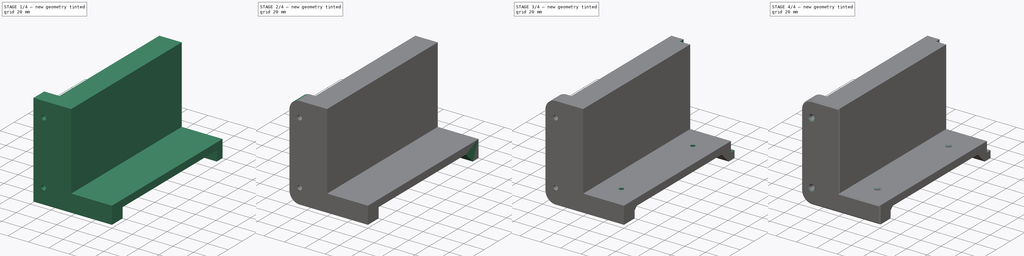
[diagram: build sequence overview — one tinted view per stage of 4, left to right]
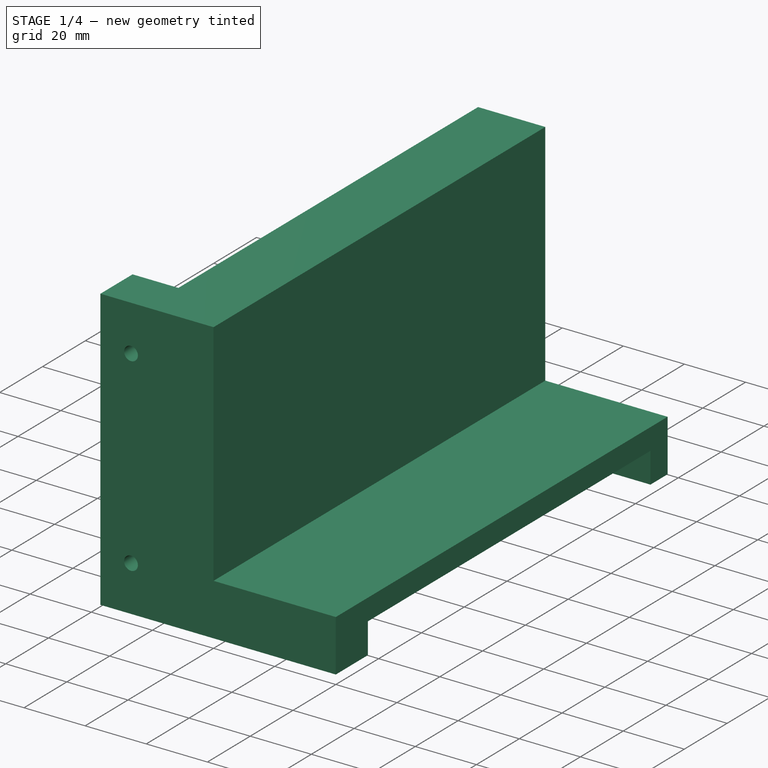
[diagram: stage 1 of 4 — iso view after this stage's code; geometry added in this stage tinted green]
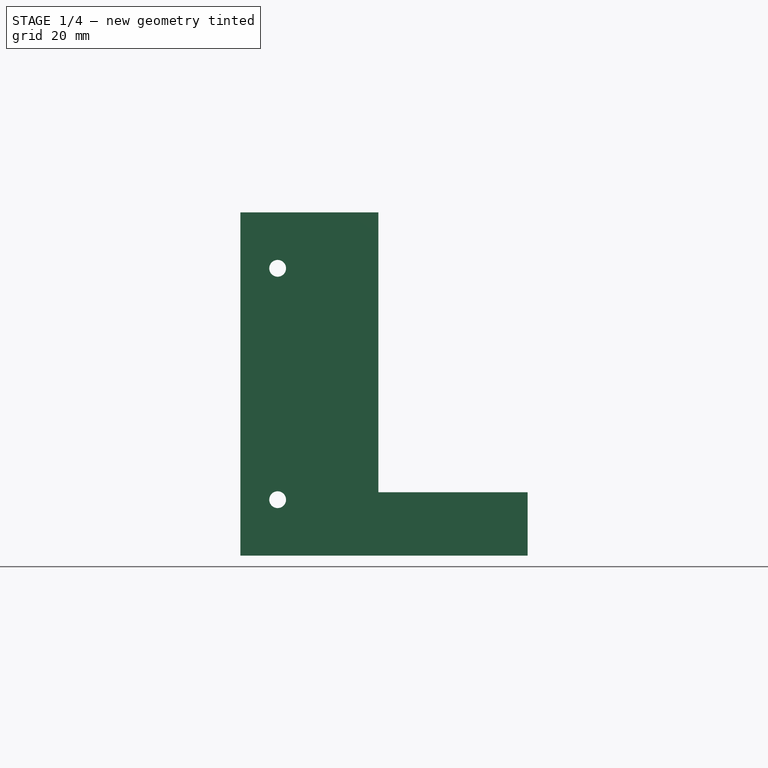
[diagram: stage 1 of 4 — front view after this stage's code; geometry added in this stage tinted green]
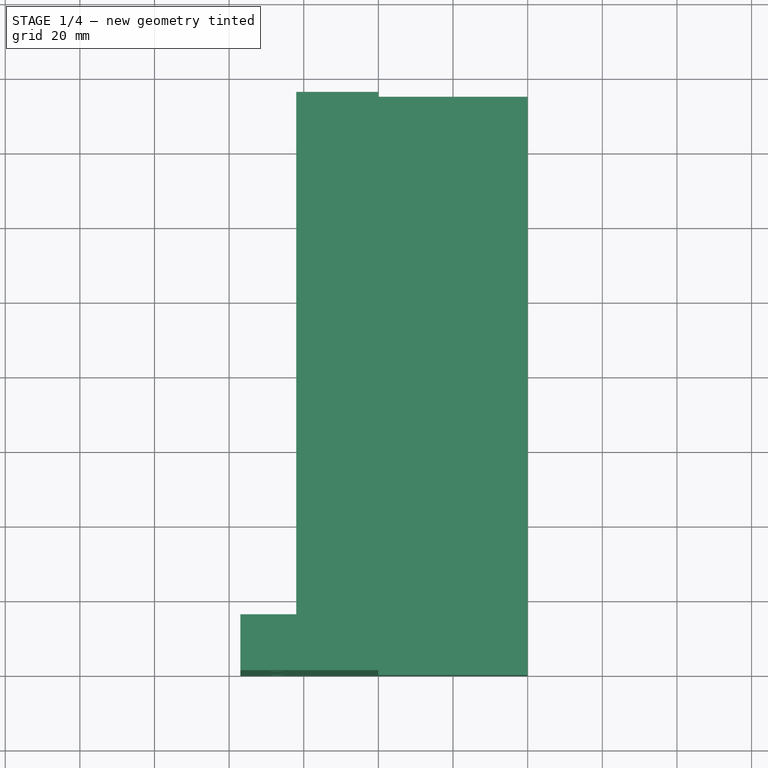
[diagram: stage 1 of 4 — top view after this stage's code; geometry added in this stage tinted green]
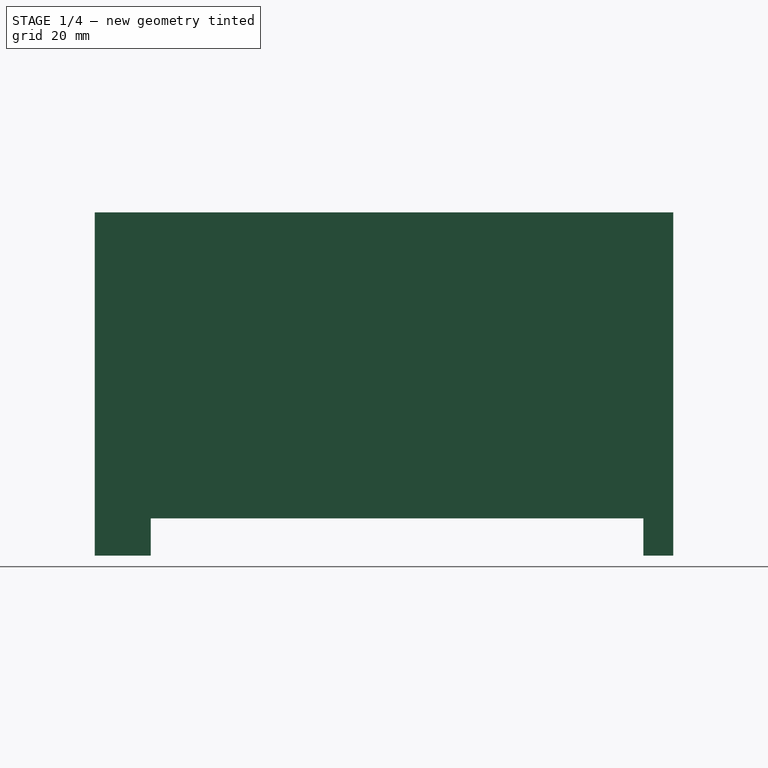
[diagram: stage 1 of 4 — right view after this stage's code; geometry added in this stage tinted green]
FCSTD DOCUMENT  (FreeCAD 2024.113R14555 (Git shallow))
Label: CoteJardiniere
License: All rights reserved
LicenseURL: https://en.wikipedia.org/wiki/All_rights_reserved
objects: Sketcher::SketchObject×5, PartDesign::Chamfer×5, PartDesign::Pocket×3, PartDesign::Pad×2, PartDesign::Fillet×2, PartDesign::Body×1
note: 47 computed .brp shape members not serialized (recipe doc carries the construction recipe); baked Part::Feature solids carry a one-line shape summary decoded from their .brp

FEATURE [Sketcher::SketchObject] Sketch
  ArcFitTolerance = 1e-06
  AttachmentSupport = -> [XZ_Plane]
  ExternalBSplineMaxDegree = 5
  ExternalBSplineTolerance = 0.0001
  FixShape = 1
  FullyConstrained = true
  InternalTolerance = 1e-06
  InvalidShape = false
  MakeInternals = false
  MapMode = 5
  Placement = pos=(0,0,0) rot=(1,0,0;1.5708rad)
  Support = -> [XZ_Plane]
  TreeRank = 11
  ValidateShape = false
  sketch-geometry (6):
    g0: LineSegment StartX=40 StartY=0 StartZ=0 EndX=40 EndY=17 EndZ=0
    g1: LineSegment StartX=40 StartY=17 StartZ=0 EndX=0 EndY=17 EndZ=0
    g2: LineSegment StartX=0 StartY=17 StartZ=0 EndX=0 EndY=92 EndZ=0
    g3: LineSegment StartX=0 StartY=92 StartZ=0 EndX=-22 EndY=92 EndZ=0
    g4: LineSegment StartX=-22 StartY=92 StartZ=0 EndX=-22 EndY=0 EndZ=0
    g5: LineSegment StartX=40 StartY=0 StartZ=0 EndX=-22 EndY=0 EndZ=0
  constraints (18):
    c: PointOnObject(g0,g-1)
    c: Coincident(g0,g1)
    c: Horizontal(g1)
    c: Coincident(g1,g2)
    c: Vertical(g2)
    c: Coincident(g2,g3)
    c: Horizontal(g3)
    c: Coincident(g3,g4)
    c: PointOnObject(g4,g-1)
    c: Vertical(g4)
    c: Coincident(g0,g5)
    c: Coincident(g5,g4)
    c: Vertical(g0)
    c: DistanceY(g0,g0) = 17
    c: DistanceX(g0) = 40
    c: DistanceX(g3,g-1) = 22
    c: PointOnObject(g1,g-2)
    c: DistanceY(g-1,g2) = 92
FEATURE [PartDesign::Pad] Pad
  AddSubType = 0
  AlongSketchNormal = false
  AutoTaperInnerAngle = true
  CheckUpToFaceLimits = true
  ClaimChildren = false
  Direction = (0,-1,2e-16)
  Fit = 0
  FitJoin = 0
  FixShape = 1
  InnerFit = 0
  InnerFitJoin = 0
  InvalidShape = false
  Length = 155
  Length2 = 10
  Linearize = true
  NewSolid = false
  Profile = -> Sketch
  ReferenceAxis = -> Sketch [N_Axis]
  Refine = true
  Reversed = true
  Suppress = false
  TaperInnerAngle = 0
  TaperInnerAngleRev = 0
  TreeRank = 12
  Type = 0
  ValidateShape = true
  _ProfileBasedVersion = 1
FEATURE [Sketcher::SketchObject] Sketch001
  ArcFitTolerance = 1e-06
  AttachmentSupport = -> [XZ_Plane]
  ExternalBSplineMaxDegree = 5
  ExternalBSplineTolerance = 0.0001
  ExternalGeometry = -> [Pad]
  FixShape = 1
  FullyConstrained = true
  InternalTolerance = 1e-06
  InvalidShape = false
  MakeInternals = false
  MapMode = 5
  Placement = pos=(0,0,0) rot=(1,0,0;1.5708rad)
  Support = -> [XZ_Plane]
  TreeRank = 13
  ValidateShape = false
  sketch-geometry (8):
    g0: LineSegment StartX=-22 StartY=92 StartZ=0 EndX=-37 EndY=92 EndZ=0
    g1: LineSegment StartX=-37 StartY=92 StartZ=0 EndX=-37 EndY=0 EndZ=0
    g2: LineSegment StartX=-37 StartY=0 StartZ=0 EndX=-22 EndY=0 EndZ=0
    g3: LineSegment StartX=-22 StartY=0 StartZ=0 EndX=-22 EndY=92 EndZ=0
    g4: Circle CenterX=-27 CenterY=77 CenterZ=0 NormalX=0 NormalY=0 NormalZ=1 AngleXU=0 Radius=2.25
    g5: Circle CenterX=-27 CenterY=15 CenterZ=0 NormalX=0 NormalY=0 NormalZ=1 AngleXU=0 Radius=2.25
    g6: LineSegment [constr] StartX=-27 StartY=92 StartZ=0 EndX=-27 EndY=0 EndZ=0
    g7: GeomPoint [constr] X=-27 Y=46 Z=0
  constraints (20):
    c: Coincident(g0,g1)
    c: Coincident(g1,g2)
    c: Coincident(g2,g3)
    c: Coincident(g3,g0)
    c: Horizontal(g0)
    c: Horizontal(g2)
    c: Vertical(g1)
    c: Coincident(g0,g-3)
    c: Coincident(g2,g-3)
    c: DistanceX(g0,g0) = 15
    c: Equal(g5,g4)
    c: Diameter(g5) = 4.5
    c: PointOnObject(g6,g2)
    c: Vertical(g6)
    c: Symmetric(g6,g6,g7)
    c: PointOnObject(g4,g6)
    c: Symmetric(g5,g4,g7)
    c: DistanceY(g4,g6) = 15
    c: PointOnObject(g6,g0)
    c: DistanceX(g0,g6) = 10
FEATURE [PartDesign::Pad] Pad001
  AddSubType = 0
  AlongSketchNormal = false
  AutoTaperInnerAngle = true
  BaseFeature = -> Pad
  CheckUpToFaceLimits = true
  ClaimChildren = false
  Direction = (0,-1,2e-16)
  Fit = 0
  FitJoin = 0
  FixShape = 1
  InnerFit = 0
  InnerFitJoin = 0
  InvalidShape = false
  Length = 15
  Length2 = 10
  Linearize = true
  NewSolid = false
  Profile = -> Sketch001
  ReferenceAxis = -> Sketch001 [N_Axis]
  Refine = true
  Reversed = true
  Suppress = false
  TaperInnerAngle = 0
  TaperInnerAngleRev = 0
  TreeRank = 14
  Type = 0
  ValidateShape = true
  _ProfileBasedVersion = 1
FEATURE [Sketcher::SketchObject] Sketch002
  ArcFitTolerance = 1e-06
  AttachmentOffset = pos=(0,0,-8) rot=(0,0,1;0rad)
  AttachmentSupport = -> [Pad001]
  ExternalBSplineMaxDegree = 5
  ExternalBSplineTolerance = 0.0001
  ExternalGeometry = -> [Pad001]
  FixShape = 1
  FullyConstrained = true
  InternalTolerance = 1e-06
  InvalidShape = false
  MakeInternals = false
  MapMode = 5
  Placement = pos=(0,147,-3.26e-14) rot=(0,0.707107,0.707107;3.14159rad)
  Support = -> [Pad001]
  TreeRank = 15
  ValidateShape = false
  sketch-geometry (5):
    g0: LineSegment StartX=-40 StartY=0 StartZ=0 EndX=-40 EndY=10 EndZ=0
    g1: LineSegment StartX=-40 StartY=10 StartZ=0 EndX=12 EndY=10 EndZ=0
    g2: LineSegment StartX=12 StartY=10 StartZ=0 EndX=12 EndY=84 EndZ=0
    g3: LineSegment StartX=22 StartY=0 StartZ=0 EndX=22 EndY=84 EndZ=0
    g4: LineSegment StartX=12 StartY=84 StartZ=0 EndX=22 EndY=84 EndZ=0
  constraints (14):
    c: Coincident(g-4,g0)
    c: Vertical(g0)
    c: Coincident(g0,g1)
    c: Horizontal(g1)
    c: Coincident(g1,g2)
    c: Vertical(g2)
    c: Coincident(g3,g-4)
    c: Vertical(g3)
    c: Coincident(g4,g2)
    c: Coincident(g4,g3)
    c: Horizontal(g4)
    c: DistanceY(g3,g-3) = 8
    c: DistanceY(g0,g0) = 10
    c: Equal(g4,g0)
FEATURE [PartDesign::Pocket] Pocket
  AddSubType = 1
  AlongSketchNormal = false
  AutoTaperInnerAngle = true
  BaseFeature = -> Pad001
  CheckUpToFaceLimits = true
  ClaimChildren = false
  Direction = (0,-1,2e-16)
  Fit = 0
  FitJoin = 0
  FixShape = 1
  InnerFit = 0
  InnerFitJoin = 0
  InvalidShape = false
  Length = 0
  Length2 = 10
  Linearize = true
  NewSolid = false
  Profile = -> Sketch002
  ReferenceAxis = -> Sketch002 [N_Axis]
  Refine = true
  Suppress = false
  TaperInnerAngle = 0
  TaperInnerAngleRev = 0
  TreeRank = 16
  Type = 3
  UpToFace = -> Pad001 [Face2]
  ValidateShape = true
  _ProfileBasedVersion = 1
  _Version = 1
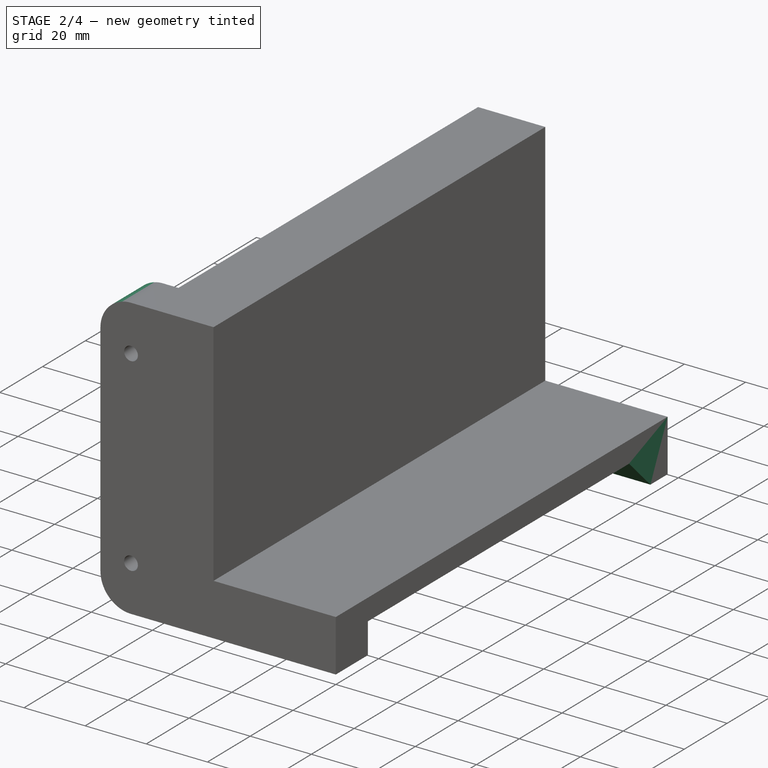
[diagram: stage 2 of 4 — iso view after this stage's code; geometry added in this stage tinted green]
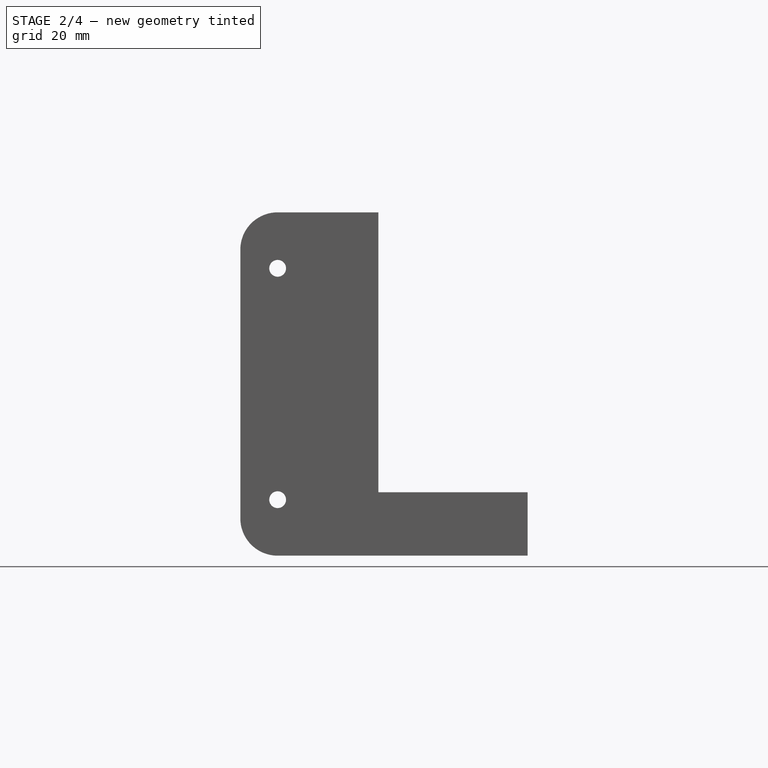
[diagram: stage 2 of 4 — front view after this stage's code; geometry added in this stage tinted green]
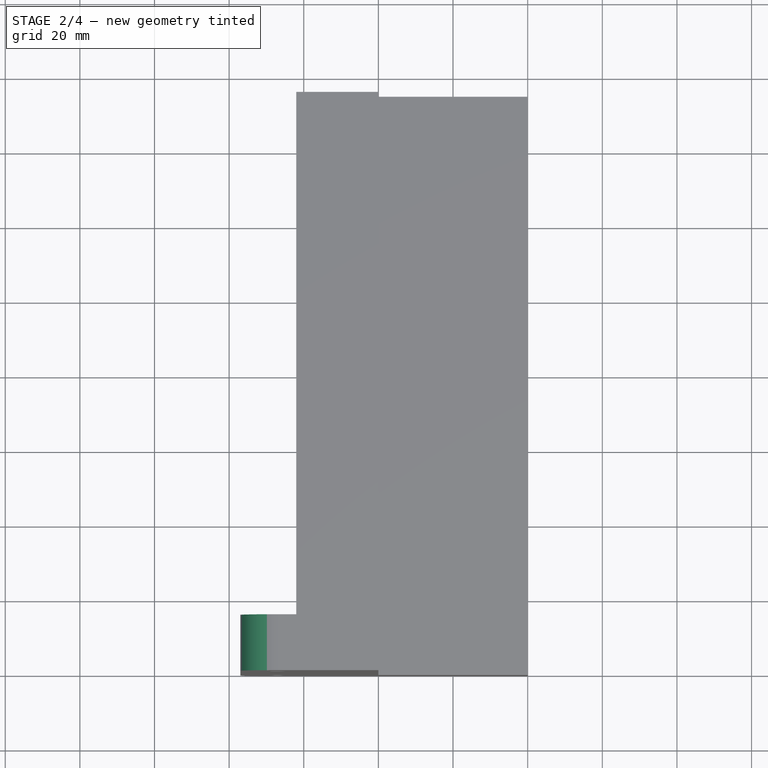
[diagram: stage 2 of 4 — top view after this stage's code; geometry added in this stage tinted green]
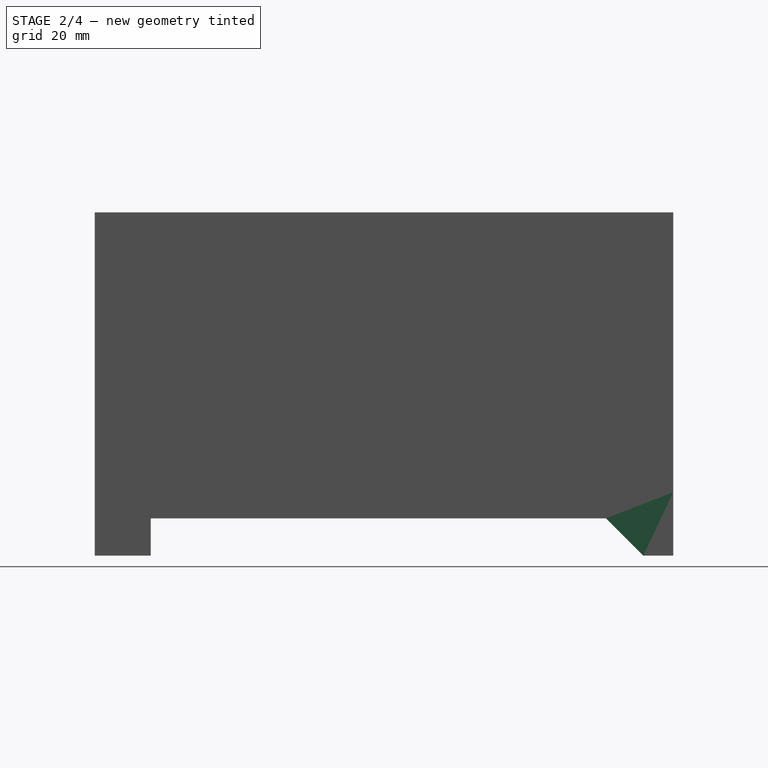
[diagram: stage 2 of 4 — right view after this stage's code; geometry added in this stage tinted green]
FEATURE [PartDesign::Fillet] Fillet
  AddSubType = 0
  Base = -> Pocket [Edge2,Edge1,Edge43]
  BaseFeature = -> Pocket
  FixShape = 1
  InvalidShape = false
  NewSolid = false
  Radius = 10
  Refine = true
  SupportTransform = false
  Suppress = false
  TreeRank = 17
  UseAllEdges = false
  ValidateShape = true
FEATURE [PartDesign::Chamfer] Chamfer
  AddSubType = 0
  Angle = 45
  Base = -> Fillet [Edge47,Edge48]
  BaseFeature = -> Fillet
  ChamferType = 0
  FixShape = 1
  FlipDirection = false
  InvalidShape = false
  NewSolid = false
  Refine = true
  Size = 9.99999
  Size2 = 1
  SupportTransform = false
  Suppress = false
  TreeRank = 18
  UseAllEdges = false
  ValidateShape = true
FEATURE [PartDesign::Fillet] Fillet001
  AddSubType = 0
  Base = -> Chamfer [Edge21]
  BaseFeature = -> Chamfer
  FixShape = 1
  InvalidShape = false
  NewSolid = false
  Radius = 19.9
  Refine = true
  SupportTransform = false
  Suppress = false
  TreeRank = 19
  UseAllEdges = false
  ValidateShape = true
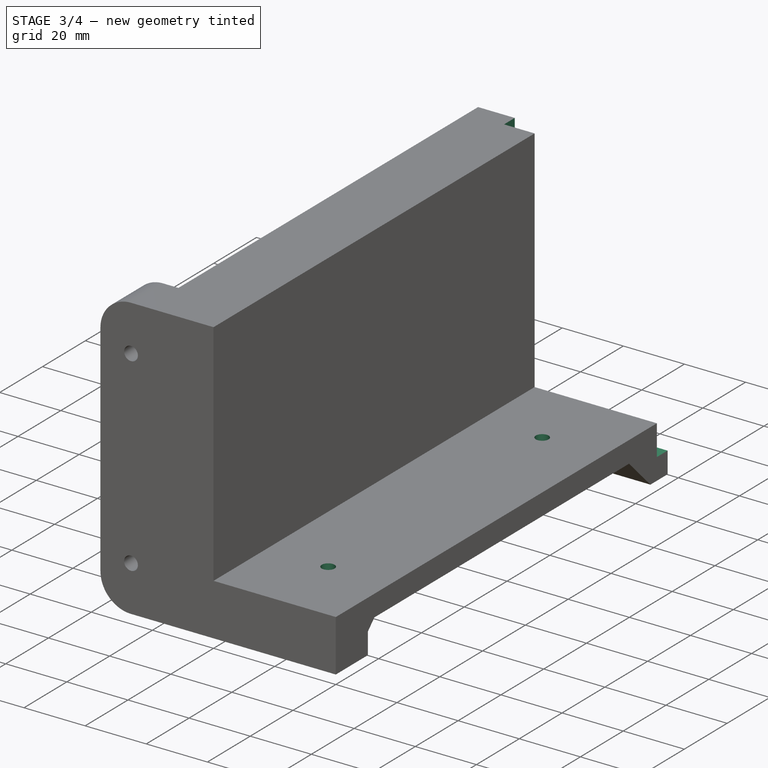
[diagram: stage 3 of 4 — iso view after this stage's code; geometry added in this stage tinted green]
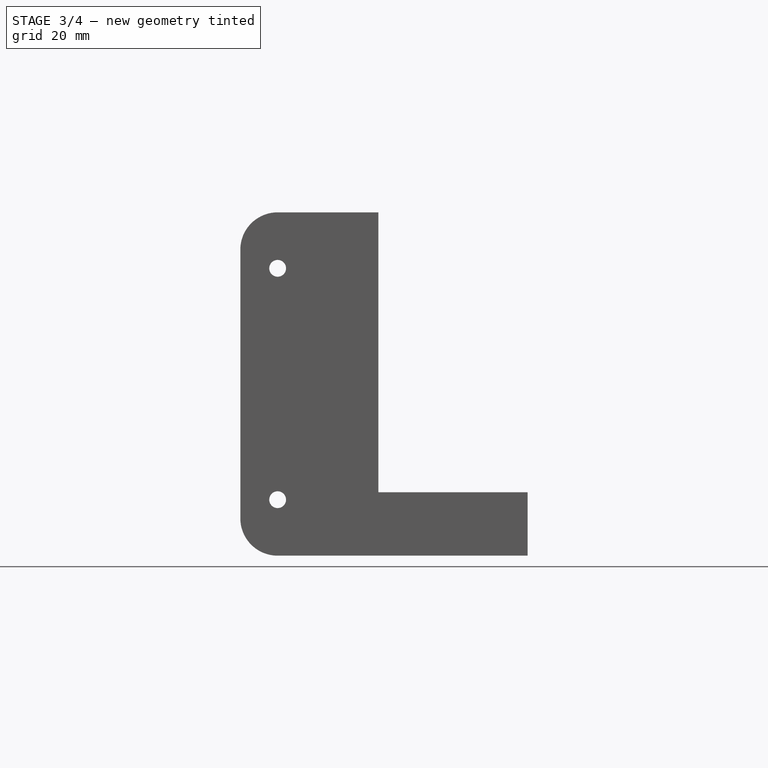
[diagram: stage 3 of 4 — front view after this stage's code; geometry added in this stage tinted green]
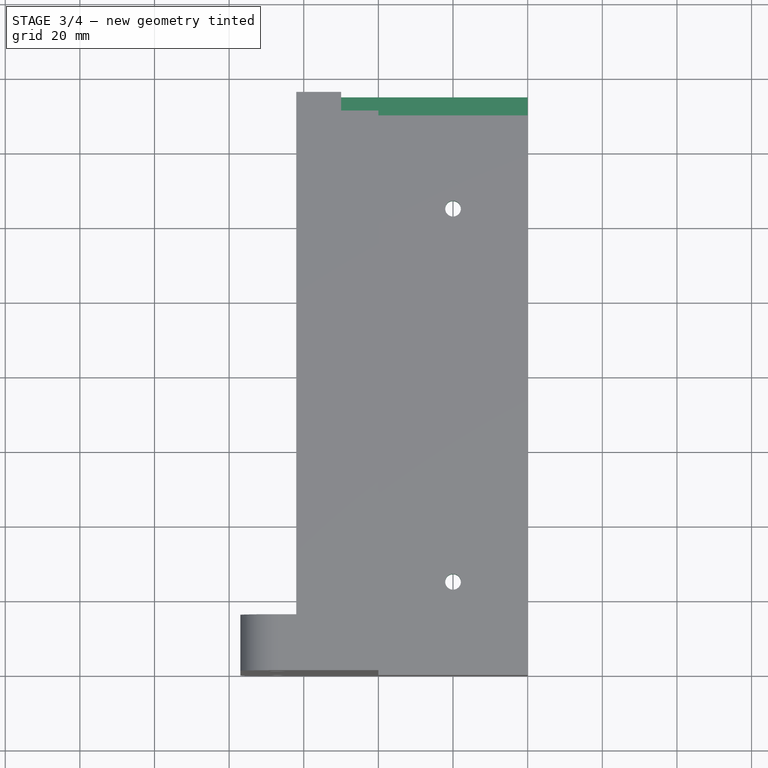
[diagram: stage 3 of 4 — top view after this stage's code; geometry added in this stage tinted green]
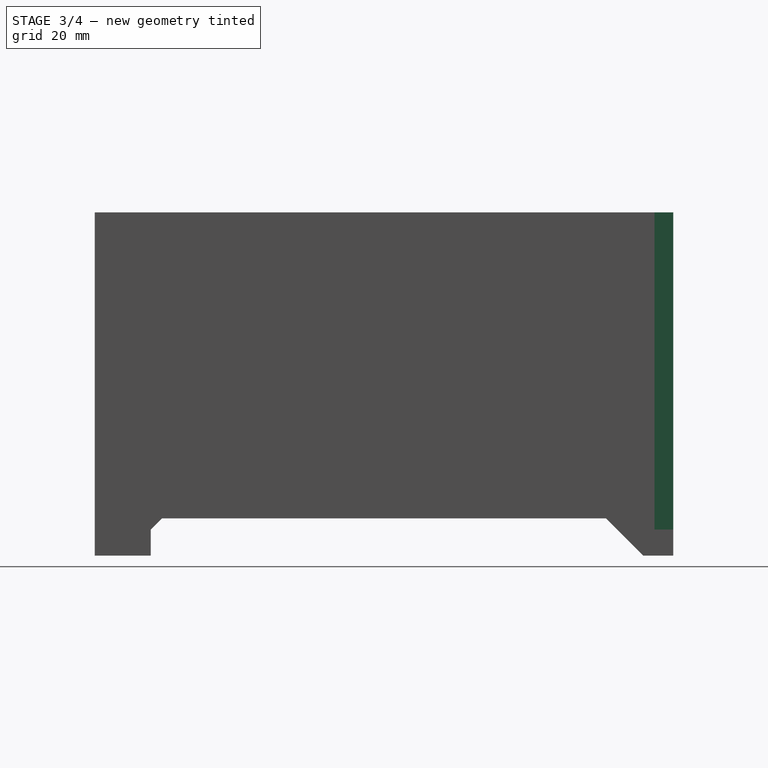
[diagram: stage 3 of 4 — right view after this stage's code; geometry added in this stage tinted green]
FEATURE [Sketcher::SketchObject] Sketch004
  ArcFitTolerance = 1e-06
  AttachmentSupport = -> [Fillet001]
  ExternalBSplineMaxDegree = 5
  ExternalBSplineTolerance = 0.0001
  ExternalGeometry = -> [Fillet001]
  FixShape = 1
  FullyConstrained = true
  InternalTolerance = 1e-06
  InvalidShape = false
  MakeInternals = false
  MapMode = 5
  Placement = pos=(0,155,-3.44e-14) rot=(0,0.707107,0.707107;3.14159rad)
  Support = -> [Fillet001]
  TreeRank = 23
  ValidateShape = false
  sketch-geometry (4):
    g0: LineSegment StartX=-40 StartY=92 StartZ=0 EndX=10 EndY=92 EndZ=0
    g1: LineSegment StartX=10 StartY=92 StartZ=0 EndX=10 EndY=7 EndZ=0
    g2: LineSegment StartX=10 StartY=7 StartZ=0 EndX=-40 EndY=7 EndZ=0
    g3: LineSegment StartX=-40 StartY=7 StartZ=0 EndX=-40 EndY=92 EndZ=0
  constraints (12):
    c: Coincident(g0,g1)
    c: Coincident(g1,g2)
    c: Coincident(g2,g3)
    c: Coincident(g3,g0)
    c: Horizontal(g0)
    c: Horizontal(g2)
    c: Vertical(g1)
    c: Vertical(g3)
    c: PointOnObject(g0,g-3)
    c: PointOnObject(g2,g-4)
    c: DistanceX(g-3,g0) = 10
    c: DistanceY(g2,g-4) = 10
FEATURE [PartDesign::Pocket] Pocket001
  AddSubType = 1
  AlongSketchNormal = false
  AutoTaperInnerAngle = true
  BaseFeature = -> Fillet001
  CheckUpToFaceLimits = true
  ClaimChildren = false
  Direction = (0,-1,2e-16)
  Fit = 0
  FitJoin = 0
  FixShape = 1
  InnerFit = 0
  InnerFitJoin = 0
  InvalidShape = false
  Length = 5
  Length2 = 10
  Linearize = true
  NewSolid = false
  Profile = -> Sketch004
  ReferenceAxis = -> Sketch004 [N_Axis]
  Refine = true
  Suppress = false
  TaperInnerAngle = 0
  TaperInnerAngleRev = 0
  TreeRank = 24
  Type = 0
  ValidateShape = true
  _ProfileBasedVersion = 1
  _Version = 1
FEATURE [PartDesign::Chamfer] Chamfer001
  AddSubType = 0
  Angle = 45
  Base = -> Pocket001 [Edge28]
  BaseFeature = -> Pocket001
  ChamferType = 0
  FixShape = 1
  FlipDirection = false
  InvalidShape = false
  NewSolid = false
  Refine = true
  Size = 3
  Size2 = 1
  SupportTransform = false
  Suppress = false
  TreeRank = 30
  UseAllEdges = false
  ValidateShape = true
FEATURE [Sketcher::SketchObject] Sketch005
  ArcFitTolerance = 1e-06
  AttachmentSupport = -> [XY_Plane]
  ExternalBSplineMaxDegree = 5
  ExternalBSplineTolerance = 0.0001
  ExternalGeometry = -> [Chamfer001]
  FixShape = 1
  FullyConstrained = true
  InternalTolerance = 1e-06
  InvalidShape = false
  MakeInternals = false
  MapMode = 5
  Support = -> [XY_Plane]
  TreeRank = 26
  ValidateShape = false
  sketch-geometry (3):
    g0: Circle CenterX=20 CenterY=25 CenterZ=0 NormalX=0 NormalY=0 NormalZ=1 AngleXU=0 Radius=2.1
    g1: GeomPoint [constr] X=20 Y=75 Z=0
    g2: Circle CenterX=20 CenterY=125 CenterZ=0 NormalX=0 NormalY=0 NormalZ=1 AngleXU=0 Radius=2.1
  constraints (6):
    c: Equal(g2,g0)
    c: Diameter(g2) = 4.2
    c: Symmetric(g2,g0,g1)
    c: DistanceY(g0,g2) = 100
    c: Vertical(g0,g2)
    c: Symmetric(g-4,g-3,g1)
FEATURE [PartDesign::Pocket] Pocket002
  AddSubType = 1
  AlongSketchNormal = false
  AutoTaperInnerAngle = true
  BaseFeature = -> Chamfer001
  CheckUpToFaceLimits = true
  ClaimChildren = false
  Direction = (0,0,-1)
  Fit = 0
  FitJoin = 0
  FixShape = 1
  InnerFit = 0
  InnerFitJoin = 0
  InvalidShape = false
  Length = 5
  Length2 = 10
  Linearize = true
  NewSolid = false
  Profile = -> Sketch005
  ReferenceAxis = -> Sketch005 [N_Axis]
  Refine = true
  Reversed = true
  Suppress = false
  TaperInnerAngle = 0
  TaperInnerAngleRev = 0
  TreeRank = 27
  Type = 1
  ValidateShape = true
  _ProfileBasedVersion = 1
  _Version = 1
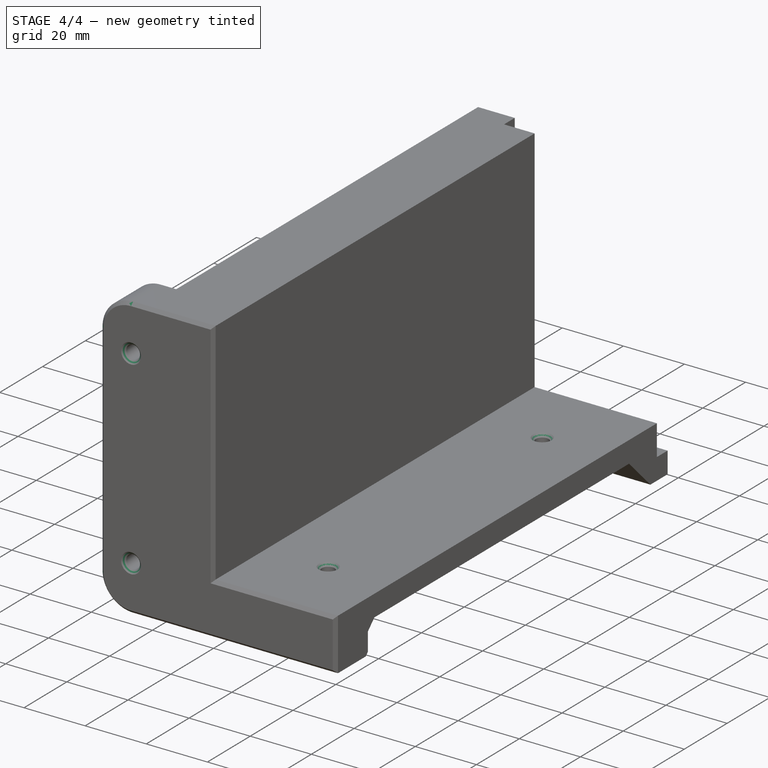
[diagram: stage 4 of 4 — iso view after this stage's code; geometry added in this stage tinted green]
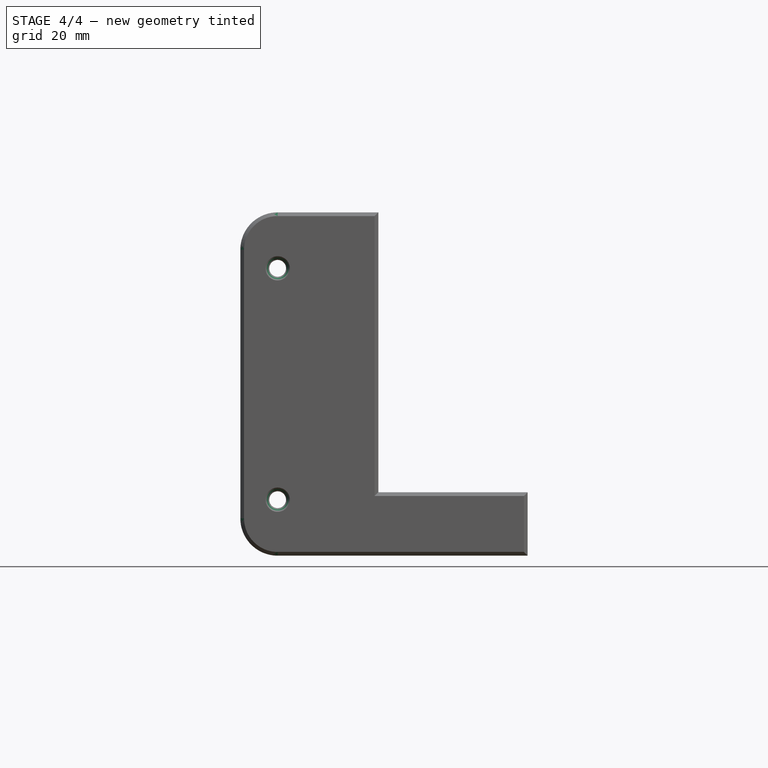
[diagram: stage 4 of 4 — front view after this stage's code; geometry added in this stage tinted green]
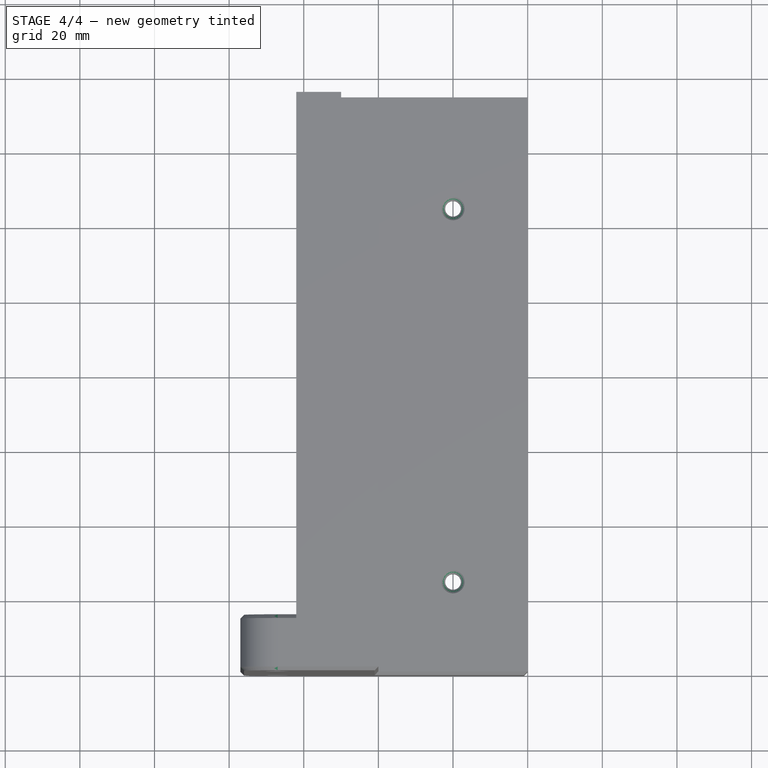
[diagram: stage 4 of 4 — top view after this stage's code; geometry added in this stage tinted green]
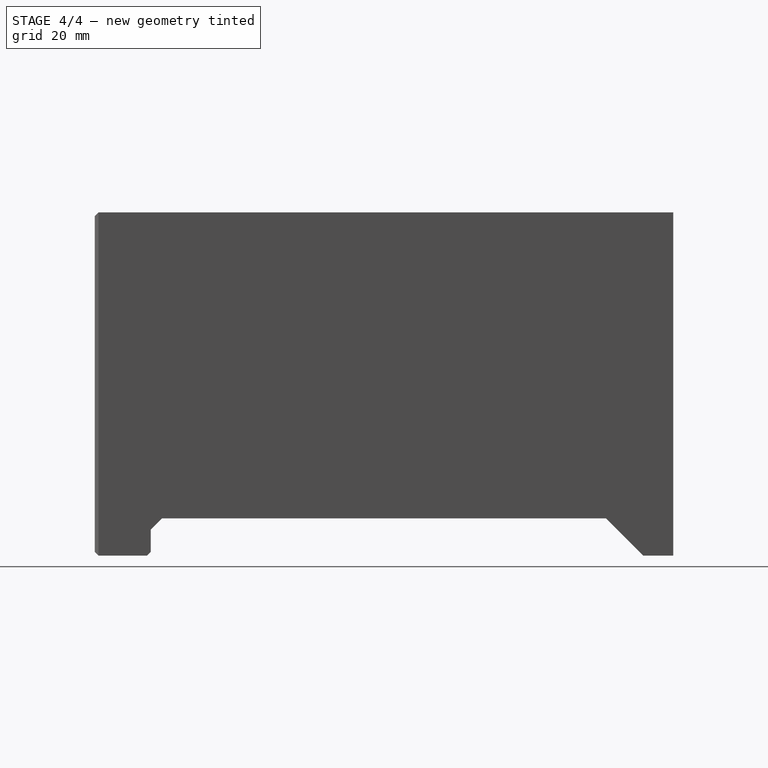
[diagram: stage 4 of 4 — right view after this stage's code; geometry added in this stage tinted green]
FEATURE [PartDesign::Chamfer] Chamfer002
  AddSubType = 0
  Angle = 45
  Base = -> Pocket002 [Edge86,Edge85,Edge75,Edge74]
  BaseFeature = -> Pocket002
  ChamferType = 0
  FixShape = 1
  FlipDirection = false
  InvalidShape = false
  NewSolid = false
  Refine = true
  Size = 1
  Size2 = 1
  SupportTransform = false
  Suppress = false
  TreeRank = 28
  UseAllEdges = false
  ValidateShape = true
FEATURE [PartDesign::Chamfer] Chamfer003
  AddSubType = 0
  Angle = 45
  Base = -> Chamfer002 [Face16]
  BaseFeature = -> Chamfer002
  ChamferType = 0
  FixShape = 1
  FlipDirection = false
  InvalidShape = false
  NewSolid = false
  Refine = true
  Size = 1
  Size2 = 1
  SupportTransform = false
  Suppress = false
  TreeRank = 29
  UseAllEdges = false
  ValidateShape = true
FEATURE [PartDesign::Chamfer] Chamfer004
  AddSubType = 0
  Angle = 45
  Base = -> Chamfer003 [Edge15,Edge30,Edge29]
  BaseFeature = -> Chamfer003
  ChamferType = 0
  FixShape = 1
  FlipDirection = false
  InvalidShape = false
  NewSolid = false
  Refine = true
  Size = 1
  Size2 = 1
  SupportTransform = false
  Suppress = false
  TreeRank = 31
  UseAllEdges = false
  ValidateShape = true
FEATURE [PartDesign::Body] Body
  AutoGroupSolids = false
  ClaimAllChildren = false
  ExportMode = 0
  FixShape = 1
  Group = -> [Sketch,Pad,Sketch001,Pad001,Sketch002,Pocket,Fillet,Chamfer,Fillet001,Sketch004,Pocket001,Chamfer001,Sketch005,Pocket002,Chamfer002,Chamfer003,Chamfer004]
  InvalidShape = false
  Origin = -> Origin
  SingleSolid = true
  Tip = -> Chamfer004
  TreeRank = 10
  ValidateShape = false
  _ExportChildren = -> [Pad,Pad001,Pocket,Fillet,Chamfer,Fillet001,Pocket001,Chamfer001,Pocket002,Chamfer002,Chamfer003,Chamfer004]
  _GroupVersion = 1
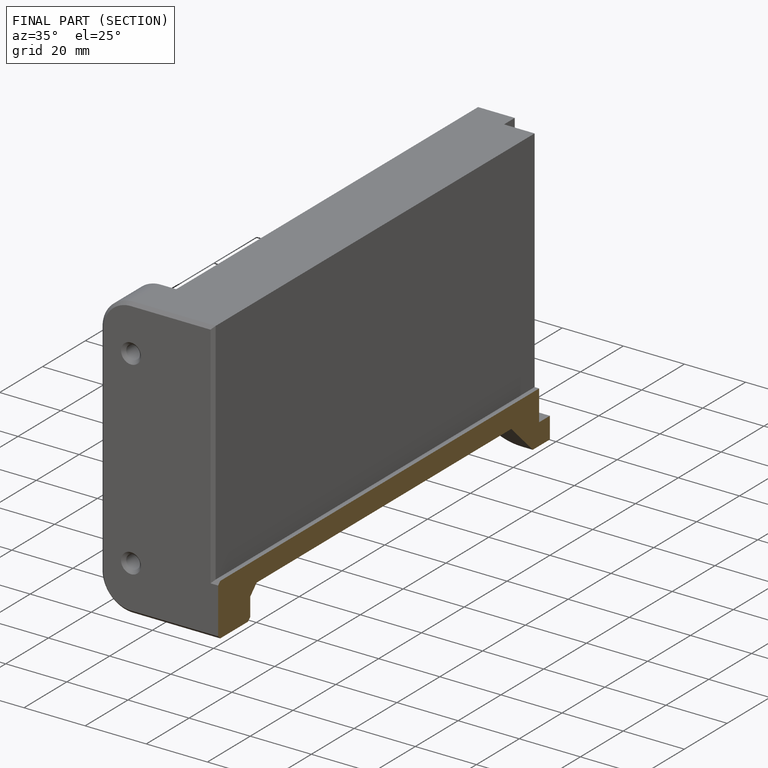
[diagram: finished part — half-section view (interior)]
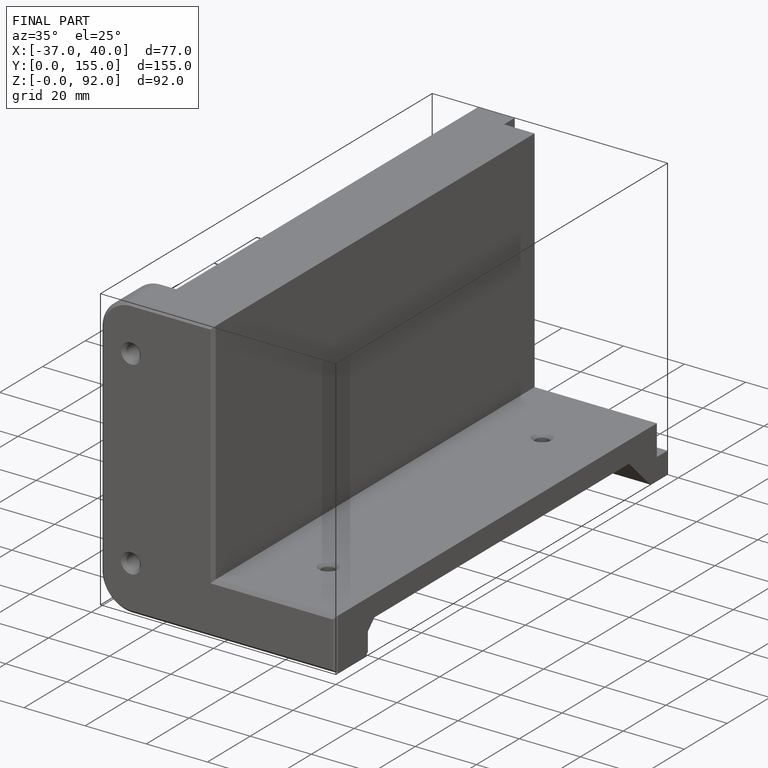
[diagram: finished part — iso view with bounding-box wireframe]
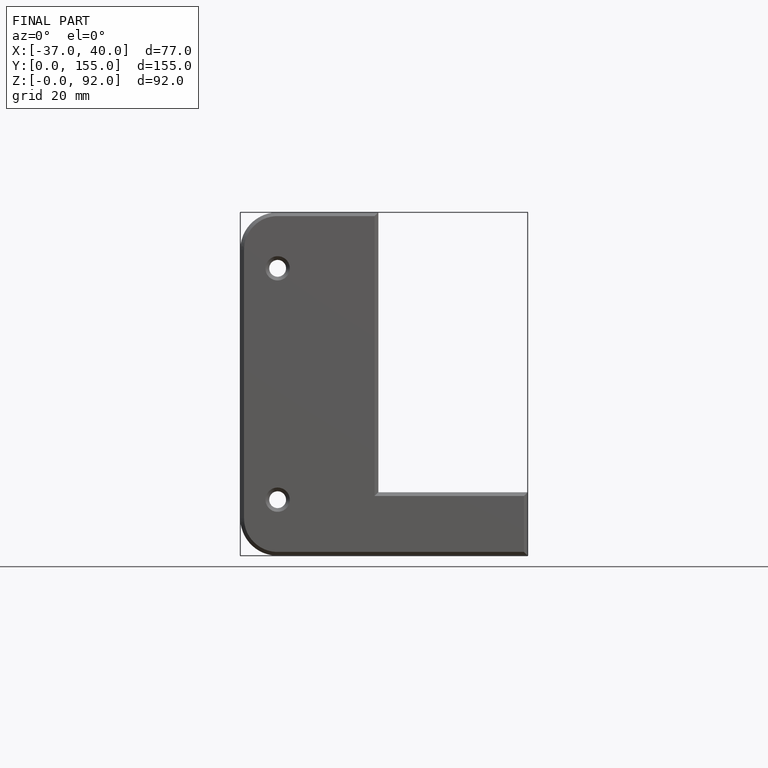
[diagram: finished part — front view with bounding-box wireframe]
